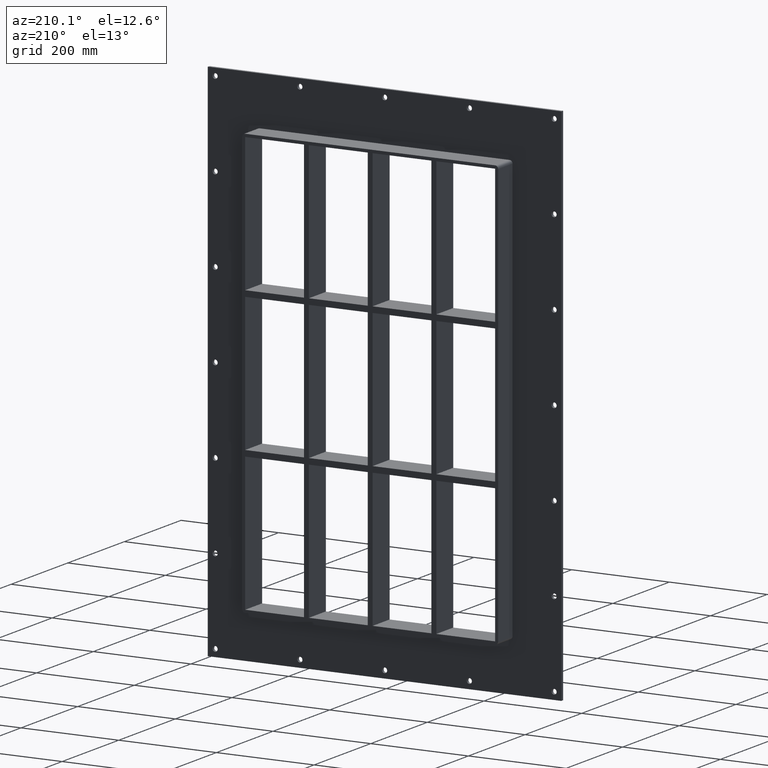
[diagram: clean part render]
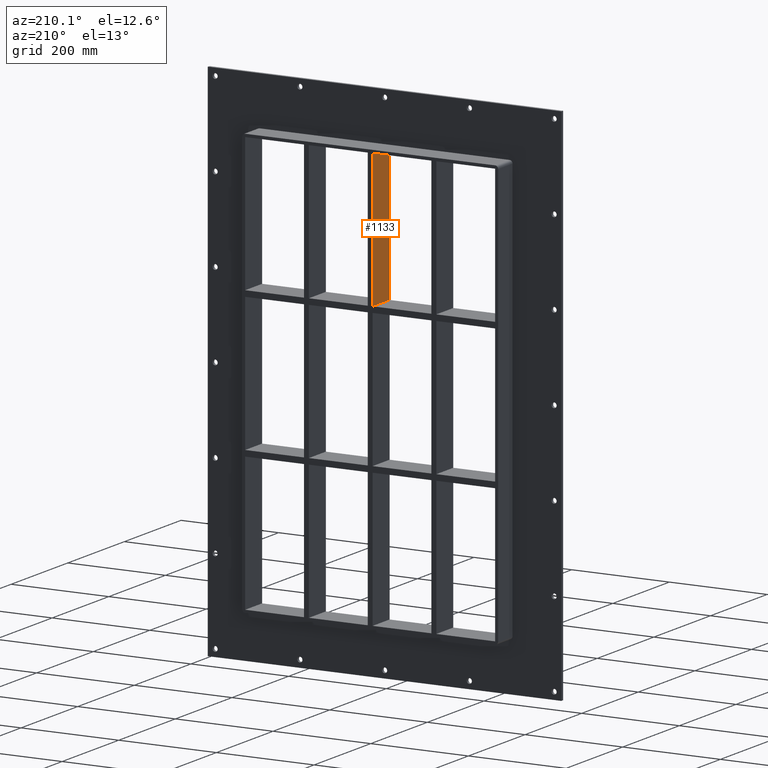
[diagram: same view with one face highlighted and labeled with its STEP entity id]
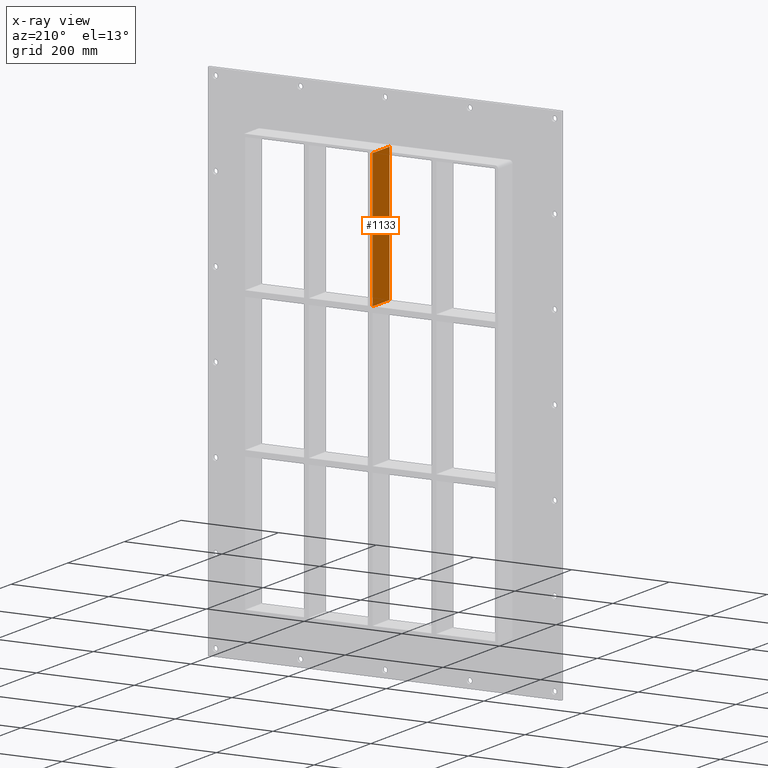
[diagram: x-ray of the same camera — body ghosted, the highlighted face saturated]
A machine part, auxiliary view. The second image highlights one B-rep face of the part: STEP entity #1133.
The next image is the same camera in x-ray: the body ghosted, the highlighted face saturated — about 0% of this face is hidden behind the body in this view.
In plain terms, the highlighted planar face has unit normal (-1, 0, 0).
Its self-contained STEP definition (entity closure, byte-faithful):
#873=CARTESIAN_POINT('',(-4.999999999999076,57.0,150.99999999999909));
#874=VERTEX_POINT('',#873);
#875=CARTESIAN_POINT('',(-4.999999999999076,-3.0,150.99999999999909));
#876=VERTEX_POINT('',#875);
#877=CARTESIAN_POINT('',(-4.999999999999076,57.0,150.99999999999909));
#878=DIRECTION('',(0.0,-1.0,0.0));
#879=VECTOR('',#878,60.0);
#880=LINE('',#877,#879);
#881=EDGE_CURVE('',#874,#876,#880,.T.);
#1103=CARTESIAN_POINT('',(-4.999999999998934,-3.0,-429.00000000000011));
#1104=DIRECTION('',(-1.0,0.0,0.0));
#1105=DIRECTION('',(0.0,0.0,1.0));
#1106=AXIS2_PLACEMENT_3D('',#1103,#1104,#1105);
#1107=PLANE('',#1106);
#1108=ORIENTED_EDGE('',*,*,#881,.T.);
#1109=CARTESIAN_POINT('',(-4.999999999999147,-3.0,429.0));
#1110=VERTEX_POINT('',#1109);
#1111=CARTESIAN_POINT('',(-4.999999999999078,-3.0,150.99999999999909));
#1112=DIRECTION('',(0.0,0.0,1.0));
#1113=VECTOR('',#1112,278.00000000000091);
#1114=LINE('',#1111,#1113);
#1115=EDGE_CURVE('',#876,#1110,#1114,.T.);
#1116=ORIENTED_EDGE('',*,*,#1115,.T.);
#1117=CARTESIAN_POINT('',(-4.999999999999147,57.0,429.0));
#1118=VERTEX_POINT('',#1117);
#1119=CARTESIAN_POINT('',(-4.999999999999147,57.000000000000007,429.00000000000006));
#1120=DIRECTION('',(0.0,-1.0,0.0));
#1121=VECTOR('',#1120,60.000000000000007);
#1122=LINE('',#1119,#1121);
#1123=EDGE_CURVE('',#1118,#1110,#1122,.T.);
#1124=ORIENTED_EDGE('',*,*,#1123,.F.);
#1125=CARTESIAN_POINT('',(-4.999999999999078,57.0,150.99999999999909));
#1126=DIRECTION('',(0.0,0.0,1.0));
#1127=VECTOR('',#1126,278.00000000000091);
#1128=LINE('',#1125,#1127);
#1129=EDGE_CURVE('',#874,#1118,#1128,.T.);
#1130=ORIENTED_EDGE('',*,*,#1129,.F.);
#1131=EDGE_LOOP('',(#1108,#1116,#1124,#1130));
#1132=FACE_OUTER_BOUND('',#1131,.T.);
#1133=ADVANCED_FACE('',(#1132),#1107,.T.);